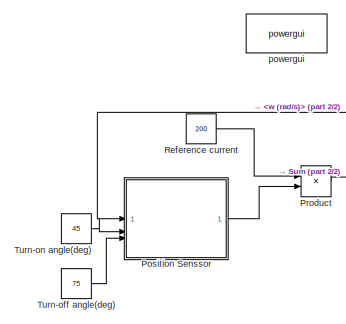
[diagram: root canvas - part 1/2, middle left region]
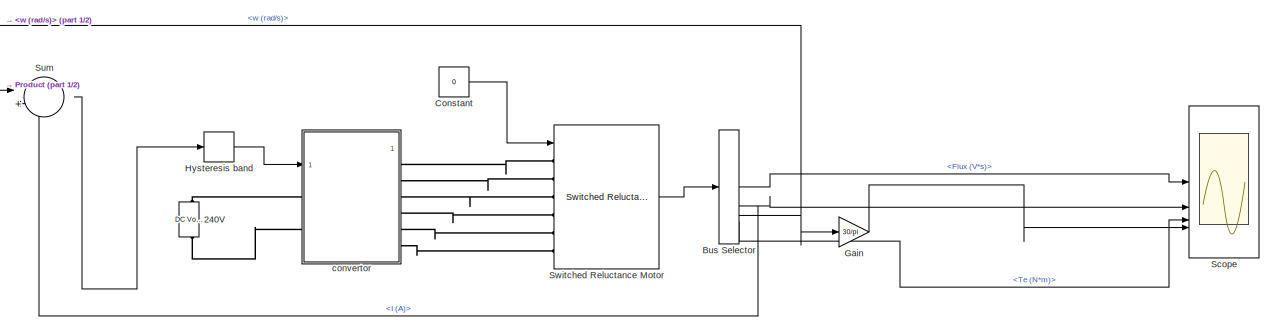
[diagram: root canvas - part 2/2, full width, middle band]
MODEL slx_919e401b7795
KIND model
CONFIG AbsTol = auto
CONFIG EnableMultiTasking = off
CONFIG FixedStep = auto
CONFIG MaxStep = auto
CONFIG MinStep = auto
CONFIG RelTol = 1e-3
CONFIG SampleTimeConstraint = Unconstrained
CONFIG SolverName = VariableStepAuto
CONFIG StartTime = 0.0
CONFIG StopTime = 0.03
BLOCK [Reference] 240V  REF=spsDCVoltageSourceLib/DC Voltage Source
  LibrarySourceBlock = sps_lib/Sources/DC Voltage Source
  SourceBlock = spsDCVoltageSourceLib/DC Voltage Source
  SourceType = DC Voltage Source
BLOCK [BusSelector] Bus Selector
  OutputSignals = Flux (V*s),I (A),w (rad/s),Te (N*m)
BLOCK [Constant] Constant
  Value = 0
BLOCK [Gain] Gain
  Gain = 30/pi
BLOCK [Relay] Hysteresis band
  InputProcessing = Columns as channels (frame based)
  OffSwitchValue = -10
  OnSwitchValue = 10
  ZeroCross = off
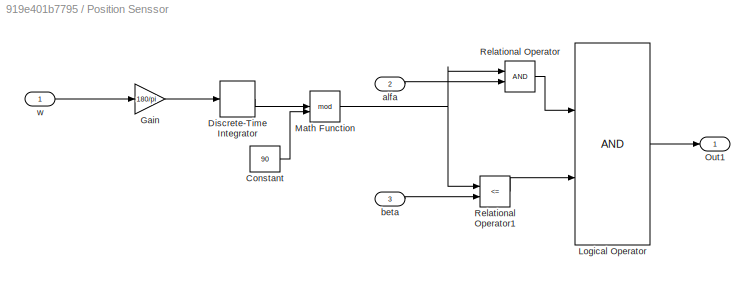
BLOCK [SubSystem] Position Senssor
BLOCK [Constant] Position Senssor/Constant
  Value = 90
BLOCK [DiscreteIntegrator] Position Senssor/Discrete-Time Integrator
  ICPrevOutput = DiscIntNeverNeededParam
  ICPrevScaledInput = DiscIntNeverNeededParam
  InitialCondition = [0 -30 -60]
  InitialConditionSetting = Auto
  SampleTime = Ts
BLOCK [Gain] Position Senssor/Gain
  Gain = 180/pi
BLOCK [Logic] Position Senssor/Logical Operator
  AllPortsSameDT = off
  OutDataTypeStr = boolean
BLOCK [Math] Position Senssor/Math Function
  Operator = mod
BLOCK [Outport] Position Senssor/Out1
BLOCK [RelationalOperator] Position Senssor/Relational Operator
  InputSameDT = off
  OutDataTypeStr = boolean
  RndMeth = Simplest
BLOCK [RelationalOperator] Position Senssor/Relational Operator1
  InputSameDT = off
  Operator = <=
  OutDataTypeStr = boolean
  RndMeth = Simplest
BLOCK [Inport] Position Senssor/alfa
  Port = 2
BLOCK [Inport] Position Senssor/beta
  Port = 3
BLOCK [Inport] Position Senssor/w
BLOCK [Product] Product
BLOCK [Constant] Reference current
  Value = 200
BLOCK [Scope] Scope
  Floating = off
  NumInputPorts = 4
  ScopeSpecificationString = Simulink.scopes.TimeScopeBlockCfg('CurrentConfiguration', extmgr.ConfigurationSet(extmgr.Configuration('Core','General UI',true),extmgr.Configuration('Core','Source UI',true),extmgr.Configuration('Sources','WiredSimulink',true),extmgr.Configuration('Visuals','Time Domain',true,'SerializedDisplays',{struct('MinYLimReal','-0.3659199','MaxYLimReal','-0.3659172','YLabelReal','','MinYLimMag','0.0000000...<+1520ch>
BLOCK [Sum] Sum
  Inputs = |+-
BLOCK [Reference] Switched Reluctance Motor  REF=spsSwitchedReluctanceMotorLib/Switched Reluctance
Motor
  LibrarySourceBlock = sps_lib/Electrical Machines/Switched Reluctance\nMotor
  SourceBlock = spsSwitchedReluctanceMotorLib/Switched Reluctance\nMotor
  SourceType = Switched Reluctance Motor
BLOCK [Constant] Turn-off angle(deg)
  Value = 75
BLOCK [Constant] Turn-on angle(deg)
  Value = 45
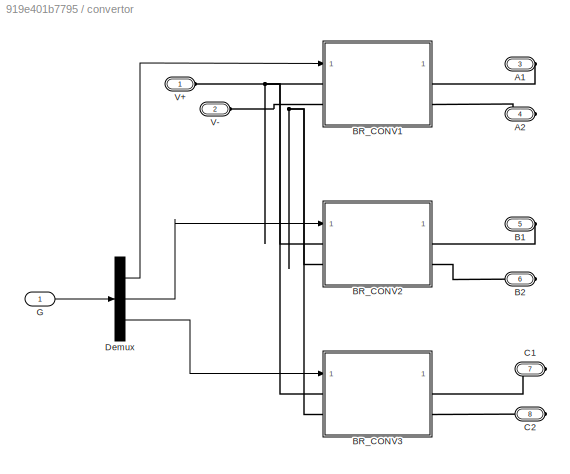
BLOCK [SubSystem] convertor
BLOCK [PMIOPort] convertor/A1
  Port = 3
  Side = Right
BLOCK [PMIOPort] convertor/A2
  NameLocation = top
  Port = 4
  Side = Right
BLOCK [PMIOPort] convertor/B1
  Port = 5
  Side = Right
BLOCK [PMIOPort] convertor/B2
  NameLocation = top
  Port = 6
  Side = Right
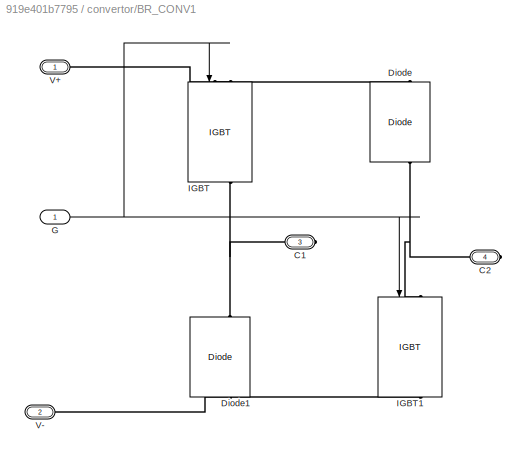
BLOCK [SubSystem] convertor/BR_CONV1
BLOCK [PMIOPort] convertor/BR_CONV1/C1
  NameLocation = top
  Port = 3
  Side = Right
BLOCK [PMIOPort] convertor/BR_CONV1/C2
  NameLocation = top
  Port = 4
  Side = Right
BLOCK [Reference] convertor/BR_CONV1/Diode  REF=spsDiodeLib/Diode
  LibrarySourceBlock = sps_lib/Power Electronics/Diode
  NameLocation = right
  SourceBlock = spsDiodeLib/Diode
  SourceType = Diode
BLOCK [Reference] convertor/BR_CONV1/Diode1  REF=spsDiodeLib/Diode
  LibrarySourceBlock = sps_lib/Power Electronics/Diode
  NameLocation = right
  SourceBlock = spsDiodeLib/Diode
  SourceType = Diode
BLOCK [Inport] convertor/BR_CONV1/G
BLOCK [Reference] convertor/BR_CONV1/IGBT  REF=spsIGBTLib/IGBT
  LibrarySourceBlock = sps_lib/Power Electronics/IGBT
  NameLocation = left
  SourceBlock = spsIGBTLib/IGBT
  SourceType = IGBT
BLOCK [Reference] convertor/BR_CONV1/IGBT1  REF=spsIGBTLib/IGBT
  LibrarySourceBlock = sps_lib/Power Electronics/IGBT
  NameLocation = left
  SourceBlock = spsIGBTLib/IGBT
  SourceType = IGBT
BLOCK [PMIOPort] convertor/BR_CONV1/V+
  Side = Left
BLOCK [PMIOPort] convertor/BR_CONV1/V-
  Port = 2
  Side = Left
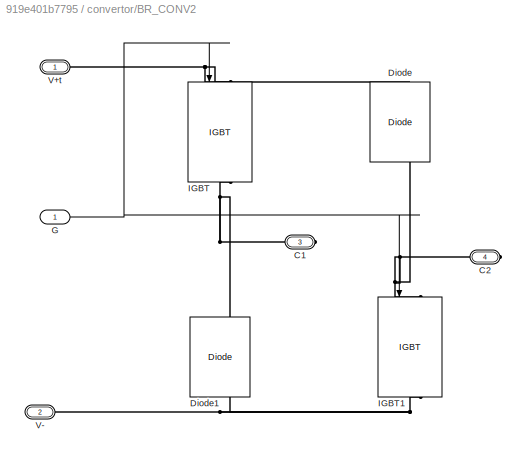
BLOCK [SubSystem] convertor/BR_CONV2
BLOCK [PMIOPort] convertor/BR_CONV2/C1
  NameLocation = top
  Port = 3
  Side = Right
BLOCK [PMIOPort] convertor/BR_CONV2/C2
  NameLocation = top
  Port = 4
  Side = Right
BLOCK [Reference] convertor/BR_CONV2/Diode  REF=spsDiodeLib/Diode
  LibrarySourceBlock = sps_lib/Power Electronics/Diode
  NameLocation = right
  SourceBlock = spsDiodeLib/Diode
  SourceType = Diode
BLOCK [Reference] convertor/BR_CONV2/Diode1  REF=spsDiodeLib/Diode
  LibrarySourceBlock = sps_lib/Power Electronics/Diode
  NameLocation = right
  SourceBlock = spsDiodeLib/Diode
  SourceType = Diode
BLOCK [Inport] convertor/BR_CONV2/G
BLOCK [Reference] convertor/BR_CONV2/IGBT  REF=spsIGBTLib/IGBT
  LibrarySourceBlock = sps_lib/Power Electronics/IGBT
  NameLocation = left
  SourceBlock = spsIGBTLib/IGBT
  SourceType = IGBT
BLOCK [Reference] convertor/BR_CONV2/IGBT1  REF=spsIGBTLib/IGBT
  LibrarySourceBlock = sps_lib/Power Electronics/IGBT
  NameLocation = left
  SourceBlock = spsIGBTLib/IGBT
  SourceType = IGBT
BLOCK [PMIOPort] convertor/BR_CONV2/V+t
  Side = Left
BLOCK [PMIOPort] convertor/BR_CONV2/V-
  Port = 2
  Side = Left
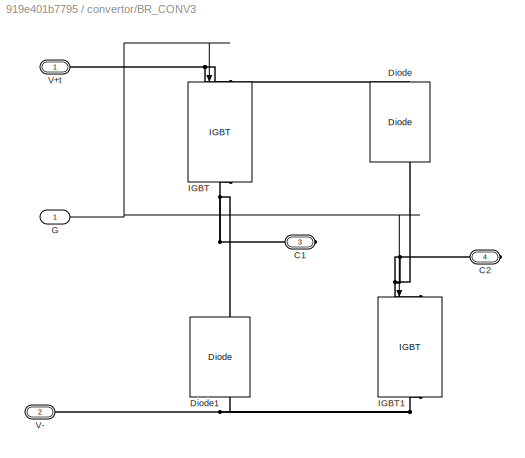
BLOCK [SubSystem] convertor/BR_CONV3
BLOCK [PMIOPort] convertor/BR_CONV3/C1
  NameLocation = top
  Port = 3
  Side = Right
BLOCK [PMIOPort] convertor/BR_CONV3/C2
  NameLocation = top
  Port = 4
  Side = Right
BLOCK [Reference] convertor/BR_CONV3/Diode  REF=spsDiodeLib/Diode
  LibrarySourceBlock = sps_lib/Power Electronics/Diode
  NameLocation = right
  SourceBlock = spsDiodeLib/Diode
  SourceType = Diode
BLOCK [Reference] convertor/BR_CONV3/Diode1  REF=spsDiodeLib/Diode
  LibrarySourceBlock = sps_lib/Power Electronics/Diode
  NameLocation = right
  SourceBlock = spsDiodeLib/Diode
  SourceType = Diode
BLOCK [Inport] convertor/BR_CONV3/G
BLOCK [Reference] convertor/BR_CONV3/IGBT  REF=spsIGBTLib/IGBT
  LibrarySourceBlock = sps_lib/Power Electronics/IGBT
  NameLocation = left
  SourceBlock = spsIGBTLib/IGBT
  SourceType = IGBT
BLOCK [Reference] convertor/BR_CONV3/IGBT1  REF=spsIGBTLib/IGBT
  LibrarySourceBlock = sps_lib/Power Electronics/IGBT
  NameLocation = left
  SourceBlock = spsIGBTLib/IGBT
  SourceType = IGBT
BLOCK [PMIOPort] convertor/BR_CONV3/V+t
  Side = Left
BLOCK [PMIOPort] convertor/BR_CONV3/V-
  Port = 2
  Side = Left
BLOCK [PMIOPort] convertor/C1
  Port = 7
  Side = Right
BLOCK [PMIOPort] convertor/C2
  NameLocation = top
  Port = 8
  Side = Right
BLOCK [Demux] convertor/Demux
  Outputs = 3
BLOCK [Inport] convertor/G
BLOCK [PMIOPort] convertor/V+
  Side = Left
BLOCK [PMIOPort] convertor/V-
  Port = 2
  Side = Left
BLOCK [Reference] powergui  REF=sps_lib/powergui
  Priority = 1
  SourceBlock = sps_lib/powergui
  SourceType = PSB option menu block
LINE Bus Selector:1 -> Scope:1
NET Bus Selector:2 -> Scope:2, Sum:2
NET Bus Selector:3 -> Gain:1, Position Senssor:1
LINE Bus Selector:4 -> Scope:3
LINE Constant:1 -> Switched Reluctance Motor:1
LINE Gain:1 -> Scope:4
LINE Hysteresis band:1 -> convertor:1
LINE Position Senssor/Constant:1 -> Position Senssor/Math Function:2
LINE Position Senssor/Discrete-Time Integrator:1 -> Position Senssor/Math Function:1
LINE Position Senssor/Gain:1 -> Position Senssor/Discrete-Time Integrator:1
LINE Position Senssor/Logical Operator:1 -> Position Senssor/Out1:1
NET Position Senssor/Math Function:1 -> Position Senssor/Relational Operator1:1, Position Senssor/Relational Operator:1
LINE Position Senssor/Relational Operator1:1 -> Position Senssor/Logical Operator:2
LINE Position Senssor/Relational Operator:1 -> Position Senssor/Logical Operator:1
LINE Position Senssor/alfa:1 -> Position Senssor/Relational Operator:2
LINE Position Senssor/beta:1 -> Position Senssor/Relational Operator1:2
LINE Position Senssor/w:1 -> Position Senssor/Gain:1
LINE Position Senssor:1 -> Product:2
LINE Product:1 -> Sum:1
LINE Reference current:1 -> Product:1
LINE Sum:1 -> Hysteresis band:1
LINE Switched Reluctance Motor:1 -> Bus Selector:1
LINE Turn-off angle(deg):1 -> Position Senssor:3
LINE Turn-on angle(deg):1 -> Position Senssor:2
NET convertor/BR_CONV1/G:1 -> convertor/BR_CONV1/IGBT1:1, convertor/BR_CONV1/IGBT:1
NET convertor/BR_CONV2/G:1 -> convertor/BR_CONV2/IGBT1:1, convertor/BR_CONV2/IGBT:1
NET convertor/BR_CONV3/G:1 -> convertor/BR_CONV3/IGBT1:1, convertor/BR_CONV3/IGBT:1
LINE convertor/Demux:1 -> convertor/BR_CONV1:1
LINE convertor/Demux:2 -> convertor/BR_CONV2:1
LINE convertor/Demux:3 -> convertor/BR_CONV3:1
LINE convertor/G:1 -> convertor/Demux:1
PLINE 240V:LConn1 -- convertor:LConn2
PLINE 240V:RConn1 -- convertor:LConn1
PLINE Switched Reluctance Motor:LConn1 -- convertor:RConn1
PLINE Switched Reluctance Motor:LConn2 -- convertor:RConn2
PLINE Switched Reluctance Motor:LConn3 -- convertor:RConn3
PLINE Switched Reluctance Motor:LConn4 -- convertor:RConn4
PLINE Switched Reluctance Motor:LConn5 -- convertor:RConn5
PLINE Switched Reluctance Motor:LConn6 -- convertor:RConn6
PLINE convertor/A1:RConn1 -- convertor/BR_CONV1:RConn1
PLINE convertor/A2:RConn1 -- convertor/BR_CONV1:RConn2
PLINE convertor/B1:RConn1 -- convertor/BR_CONV2:RConn1
PLINE convertor/B2:RConn1 -- convertor/BR_CONV2:RConn2
PNET net1: convertor/BR_CONV1/C1:RConn1 -- convertor/BR_CONV1/Diode1:RConn1 -- convertor/BR_CONV1/IGBT:RConn1
PNET net2: convertor/BR_CONV1/C2:RConn1 -- convertor/BR_CONV1/Diode:LConn1 -- convertor/BR_CONV1/IGBT1:LConn1
PNET net3: convertor/BR_CONV1/Diode1:LConn1 -- convertor/BR_CONV1/IGBT1:RConn1 -- convertor/BR_CONV1/V-:RConn1
PNET net4: convertor/BR_CONV1/Diode:RConn1 -- convertor/BR_CONV1/IGBT:LConn1 -- convertor/BR_CONV1/V+:RConn1
PNET net5: convertor/BR_CONV1:LConn1 -- convertor/BR_CONV2:LConn1 -- convertor/BR_CONV3:LConn1 -- convertor/V+:RConn1
PNET net6: convertor/BR_CONV1:LConn2 -- convertor/BR_CONV2:LConn2 -- convertor/BR_CONV3:LConn2 -- convertor/V-:RConn1
PNET net7: convertor/BR_CONV2/C1:RConn1 -- convertor/BR_CONV2/Diode1:RConn1 -- convertor/BR_CONV2/IGBT:RConn1
PNET net8: convertor/BR_CONV2/C2:RConn1 -- convertor/BR_CONV2/Diode:LConn1 -- convertor/BR_CONV2/IGBT1:LConn1
PNET net9: convertor/BR_CONV2/Diode1:LConn1 -- convertor/BR_CONV2/IGBT1:RConn1 -- convertor/BR_CONV2/V-:RConn1
PNET net10: convertor/BR_CONV2/Diode:RConn1 -- convertor/BR_CONV2/IGBT:LConn1 -- convertor/BR_CONV2/V+t:RConn1
PNET net11: convertor/BR_CONV3/C1:RConn1 -- convertor/BR_CONV3/Diode1:RConn1 -- convertor/BR_CONV3/IGBT:RConn1
PNET net12: convertor/BR_CONV3/C2:RConn1 -- convertor/BR_CONV3/Diode:LConn1 -- convertor/BR_CONV3/IGBT1:LConn1
PNET net13: convertor/BR_CONV3/Diode1:LConn1 -- convertor/BR_CONV3/IGBT1:RConn1 -- convertor/BR_CONV3/V-:RConn1
PNET net14: convertor/BR_CONV3/Diode:RConn1 -- convertor/BR_CONV3/IGBT:LConn1 -- convertor/BR_CONV3/V+t:RConn1
PLINE convertor/BR_CONV3:RConn1 -- convertor/C1:RConn1
PLINE convertor/BR_CONV3:RConn2 -- convertor/C2:RConn1
note: NET lines group one-source signal fan-out (src -> all destinations, sorted); 1:1 wires keep LINE; PNET lines group multi-terminal physical nets as a canonical sorted terminal list (undirected conserving connections); 2-terminal nets keep the pairwise PLINE form
